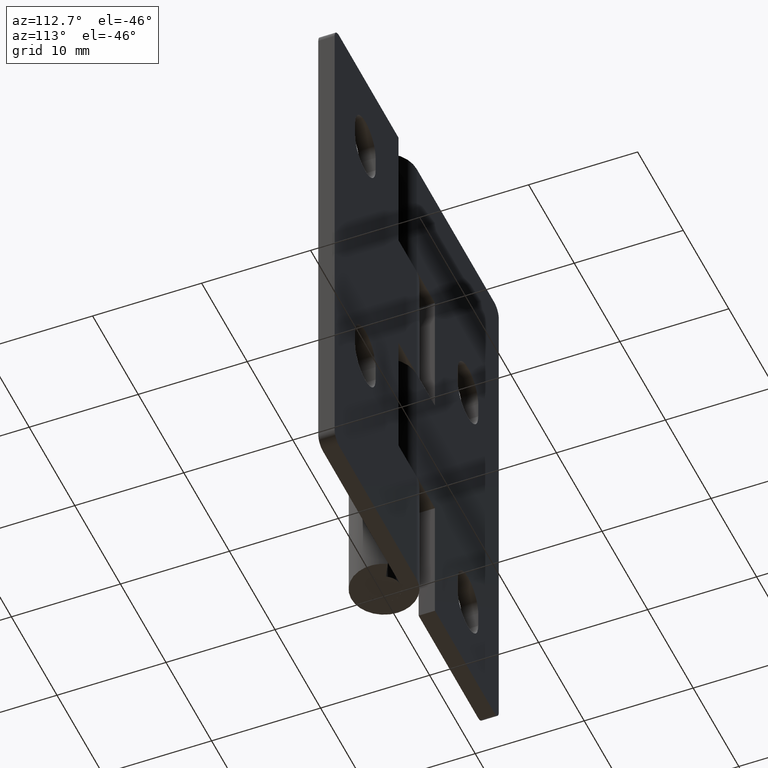
[diagram: clean part render]
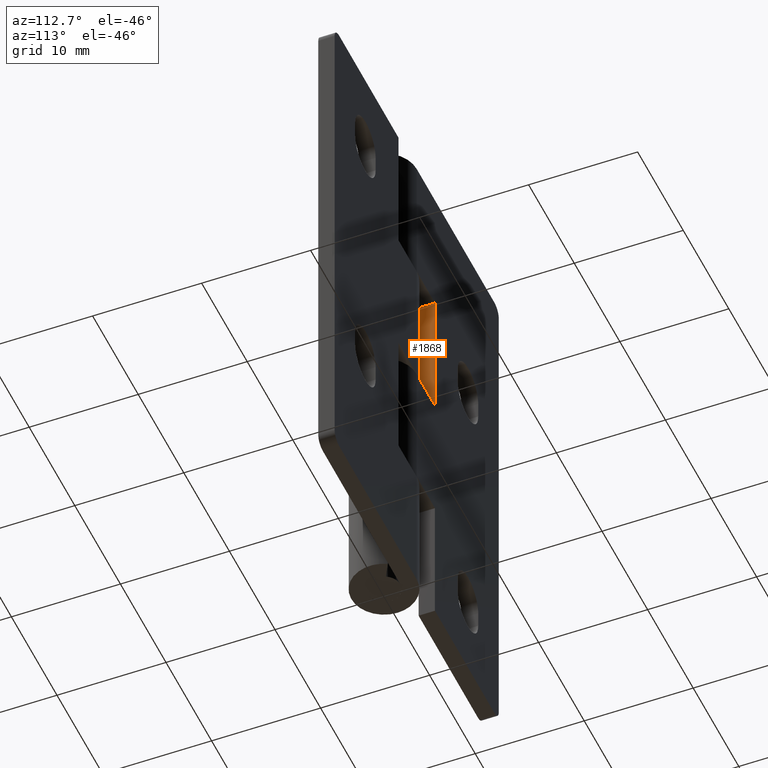
[diagram: same view with one face highlighted and labeled with its STEP entity id]
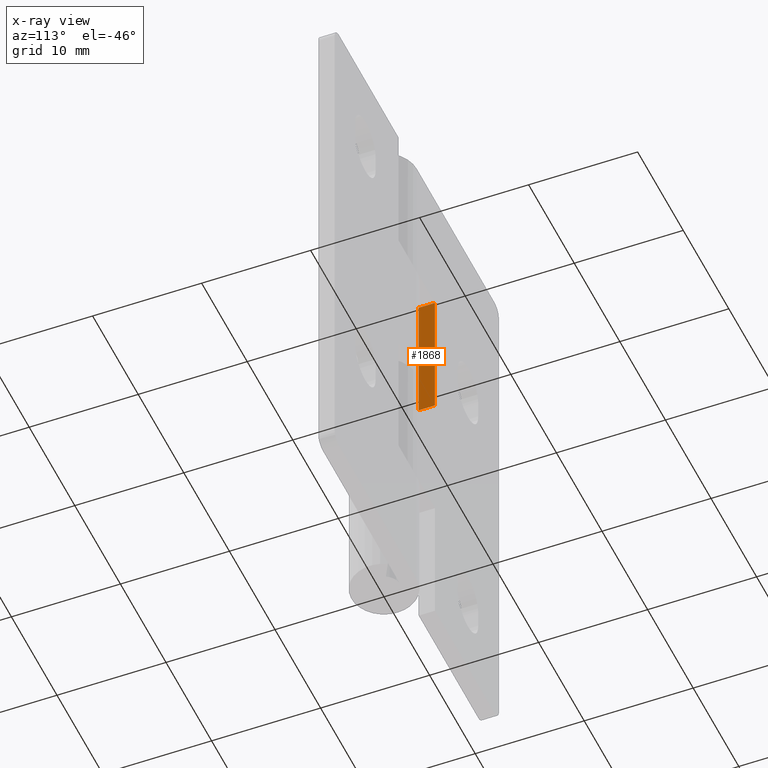
[diagram: x-ray of the same camera — body ghosted, the highlighted face saturated]
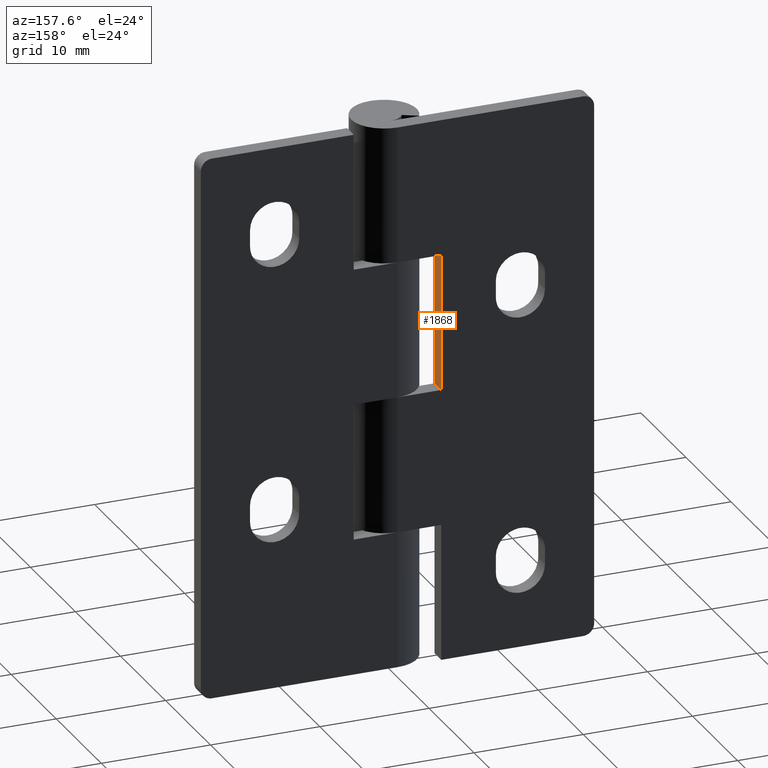
[diagram: same view with one face highlighted and labeled with its STEP entity id]
A machine part, auxiliary view. The second image highlights one B-rep face of the part: STEP entity #1868.
The next image is the same camera in x-ray: the body ghosted, the highlighted face saturated — about 0% of this face is hidden behind the body in this view.
A second angle (auxiliary view) of the same face is appended — the face is thin or edge-on in the first view.
In plain terms, the highlighted face is a freeform B-spline surface patch.
Its self-contained STEP definition (entity closure, byte-faithful):
#1721=CARTESIAN_POINT('',(-4.0,3.0,25.0));
#1722=VERTEX_POINT('',#1721);
#1728=CARTESIAN_POINT('',(-4.0,1.499999999999834,25.0));
#1729=VERTEX_POINT('',#1728);
#1730=CARTESIAN_POINT('',(-4.0,1.499999999999834,25.0));
#1731=CARTESIAN_POINT('',(-4.0,3.0,25.0));
#1732=QUASI_UNIFORM_CURVE('',1,(#1730,#1731),.UNSPECIFIED.,.F.,.U.);
#1733=EDGE_CURVE('',#1729,#1722,#1732,.T.);
#1827=CARTESIAN_POINT('',(-4.0,1.499999999999834,37.500000000000000));
#1828=VERTEX_POINT('',#1827);
#1834=CARTESIAN_POINT('',(-4.0,3.0,37.500000000000000));
#1835=VERTEX_POINT('',#1834);
#1836=CARTESIAN_POINT('',(-4.0,1.499999999999834,37.500000000000000));
#1837=CARTESIAN_POINT('',(-4.0,3.0,37.500000000000000));
#1838=QUASI_UNIFORM_CURVE('',1,(#1836,#1837),.UNSPECIFIED.,.F.,.U.);
#1839=EDGE_CURVE('',#1828,#1835,#1838,.T.);
#1849=CARTESIAN_POINT('',(-4.0,1.425075002907116,38.124374975772582));
#1850=CARTESIAN_POINT('',(-4.0,1.425075002907116,24.375624688951302));
#1851=CARTESIAN_POINT('',(-4.0,3.074925037325853,38.124374975772582));
#1852=CARTESIAN_POINT('',(-4.0,3.074925037325853,24.375624688951302));
#1853=B_SPLINE_SURFACE_WITH_KNOTS('',1,1,((#1849,#1851),(#1850,#1852)),.UNSPECIFIED.,.F.,.F.,.U.,(2,2),(2,2),(0.0,13.748750286821281),(0.041708334948495,0.958291687403247),.UNSPECIFIED.);
#1854=CARTESIAN_POINT('',(-4.0,1.499999999999834,37.500000000000000));
#1855=CARTESIAN_POINT('',(-4.0,1.499999999999834,25.0));
#1856=QUASI_UNIFORM_CURVE('',1,(#1854,#1855),.UNSPECIFIED.,.F.,.U.);
#1857=EDGE_CURVE('',#1828,#1729,#1856,.T.);
#1858=ORIENTED_EDGE('',*,*,#1857,.T.);
#1859=ORIENTED_EDGE('',*,*,#1733,.T.);
#1860=CARTESIAN_POINT('',(-4.0,3.0,37.500000000000000));
#1861=CARTESIAN_POINT('',(-4.0,3.0,25.0));
#1862=QUASI_UNIFORM_CURVE('',1,(#1860,#1861),.UNSPECIFIED.,.F.,.U.);
#1863=EDGE_CURVE('',#1835,#1722,#1862,.T.);
#1864=ORIENTED_EDGE('',*,*,#1863,.F.);
#1865=ORIENTED_EDGE('',*,*,#1839,.F.);
#1866=EDGE_LOOP('',(#1858,#1859,#1864,#1865));
#1867=FACE_OUTER_BOUND('',#1866,.T.);
#1868=ADVANCED_FACE('',(#1867),#1853,.T.);